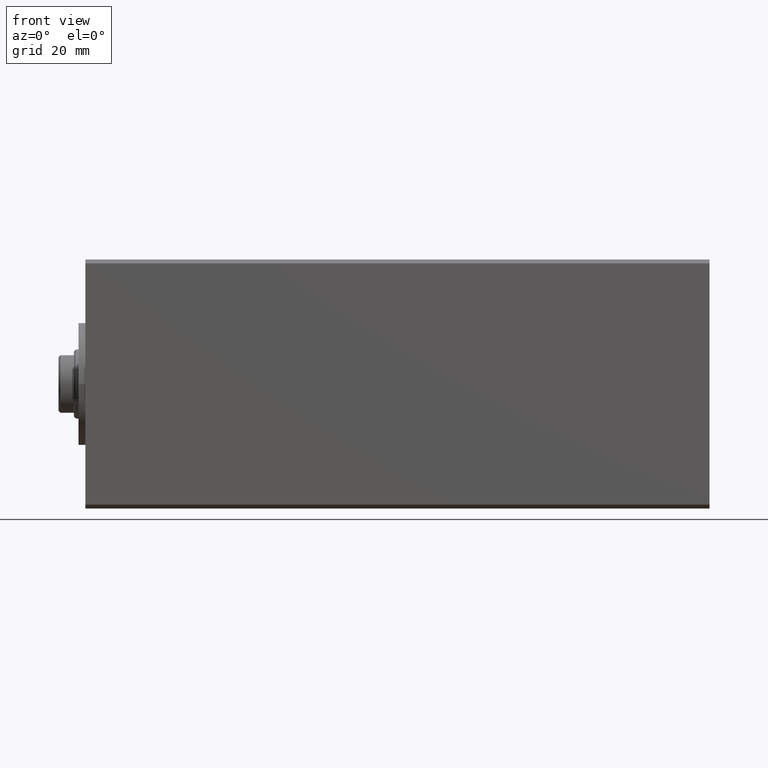
[diagram: clean part render]
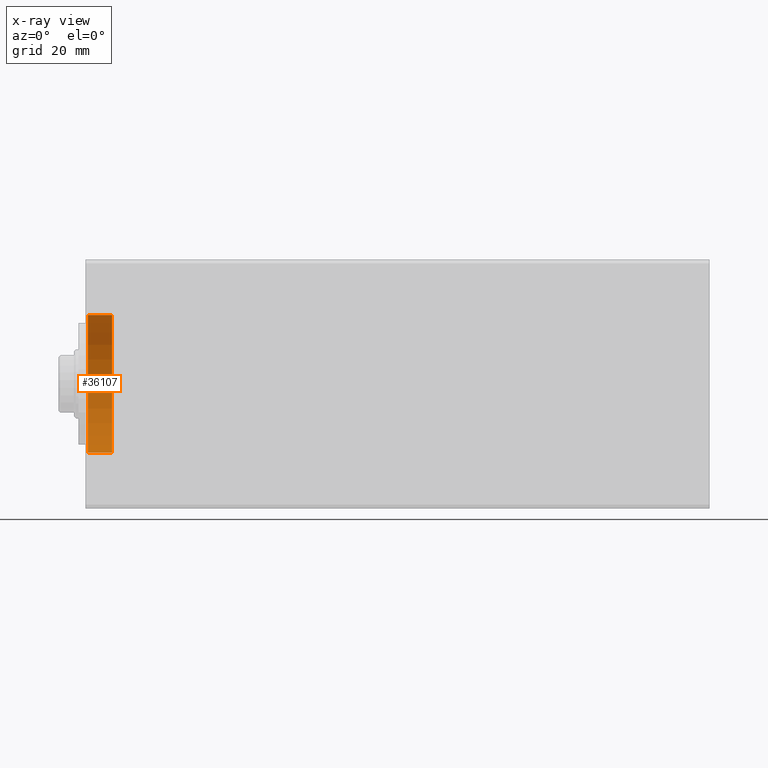
[diagram: x-ray — body ghosted, one internal face saturated and labeled with its STEP entity id]
A machine part, front view, then the same camera in x-ray: the body is ghosted and one INTERNAL B-rep face — a face not visible from any outside direction — is saturated and labeled: STEP entity #36107.
In plain terms, the highlighted cylindrical surface (partial cylindrical patch) has radius 18 mm, axis along (-1, -0, -0).
Its self-contained STEP definition (entity closure, byte-faithful):
#80 = VERTEX_POINT ( 'NONE', #20495 ) ;
#124 = AXIS2_PLACEMENT_3D ( 'NONE', #25292, #38789, #15025 ) ;
#5751 = DIRECTION ( 'NONE',  ( -1.000000000000000000, -0.000000000000000000, -0.000000000000000000 ) ) ;
#5920 = VECTOR ( 'NONE', #40574, 1000.000000000000000 ) ;
#7122 = DIRECTION ( 'NONE',  ( 0.000000000000000000, 0.000000000000000000, 1.000000000000000000 ) ) ;
#9065 = VERTEX_POINT ( 'NONE', #11925 ) ;
#9407 = LINE ( 'NONE', #12618, #27695 ) ;
#9555 = CARTESIAN_POINT ( 'NONE',  ( 0.6999999999999749756, 0.000000000000000000, 0.000000000000000000 ) ) ;
#9773 = DIRECTION ( 'NONE',  ( 0.000000000000000000, 0.000000000000000000, -1.000000000000000000 ) ) ;
#11702 = CARTESIAN_POINT ( 'NONE',  ( 7.000000000000000000, 2.204364238465235428E-15, -18.00000000000000000 ) ) ;
#11925 = CARTESIAN_POINT ( 'NONE',  ( 0.6999999999999749756, 0.000000000000000000, 18.00000000000000000 ) ) ;
#12618 = CARTESIAN_POINT ( 'NONE',  ( 7.000000000000000000, 2.204364238465235428E-15, -18.00000000000000000 ) ) ;
#15025 = DIRECTION ( 'NONE',  ( 0.000000000000000000, 0.000000000000000000, 1.000000000000000000 ) ) ;
#15787 = EDGE_LOOP ( 'NONE', ( #29087, #19119, #25356, #18353 ) ) ;
#17196 = CARTESIAN_POINT ( 'NONE',  ( 7.000000000000000000, 0.000000000000000000, 0.000000000000000000 ) ) ;
#18353 = ORIENTED_EDGE ( 'NONE', *, *, #44663, .T. ) ;
#18795 = VERTEX_POINT ( 'NONE', #39004 ) ;
#19119 = ORIENTED_EDGE ( 'NONE', *, *, #25996, .F. ) ;
#19553 = LINE ( 'NONE', #33727, #5920 ) ;
#19826 = CIRCLE ( 'NONE', #124, 18.00000000000000000 ) ;
#20111 = EDGE_CURVE ( 'NONE', #21535, #18795, #9407, .T. ) ;
#20495 = CARTESIAN_POINT ( 'NONE',  ( 7.000000000000000000, 0.000000000000000000, 18.00000000000000000 ) ) ;
#21535 = VERTEX_POINT ( 'NONE', #11702 ) ;
#23489 = DIRECTION ( 'NONE',  ( -1.000000000000000000, 0.000000000000000000, 0.000000000000000000 ) ) ;
#23651 = CIRCLE ( 'NONE', #31687, 18.00000000000000000 ) ;
#24487 = EDGE_CURVE ( 'NONE', #80, #9065, #19553, .T. ) ;
#24495 = CYLINDRICAL_SURFACE ( 'NONE', #41451, 18.00000000000000000 ) ;
#25292 = CARTESIAN_POINT ( 'NONE',  ( 7.000000000000000000, 0.000000000000000000, 0.000000000000000000 ) ) ;
#25356 = ORIENTED_EDGE ( 'NONE', *, *, #24487, .T. ) ;
#25996 = EDGE_CURVE ( 'NONE', #80, #21535, #19826, .T. ) ;
#27695 = VECTOR ( 'NONE', #5751, 1000.000000000000000 ) ;
#29087 = ORIENTED_EDGE ( 'NONE', *, *, #20111, .F. ) ;
#31687 = AXIS2_PLACEMENT_3D ( 'NONE', #9555, #23489, #9773 ) ;
#31808 = DIRECTION ( 'NONE',  ( -1.000000000000000000, -0.000000000000000000, -0.000000000000000000 ) ) ;
#33727 = CARTESIAN_POINT ( 'NONE',  ( 7.000000000000000000, 0.000000000000000000, 18.00000000000000000 ) ) ;
#36107 = ADVANCED_FACE ( 'NONE', ( #45056 ), #24495, .F. ) ;
#38789 = DIRECTION ( 'NONE',  ( -1.000000000000000000, 0.000000000000000000, 0.000000000000000000 ) ) ;
#39004 = CARTESIAN_POINT ( 'NONE',  ( 0.6999999999999749756, 2.204364238465235428E-15, -18.00000000000000000 ) ) ;
#40574 = DIRECTION ( 'NONE',  ( -1.000000000000000000, -0.000000000000000000, -0.000000000000000000 ) ) ;
#41451 = AXIS2_PLACEMENT_3D ( 'NONE', #17196, #31808, #7122 ) ;
#44663 = EDGE_CURVE ( 'NONE', #9065, #18795, #23651, .T. ) ;
#45056 = FACE_OUTER_BOUND ( 'NONE', #15787, .T. ) ;